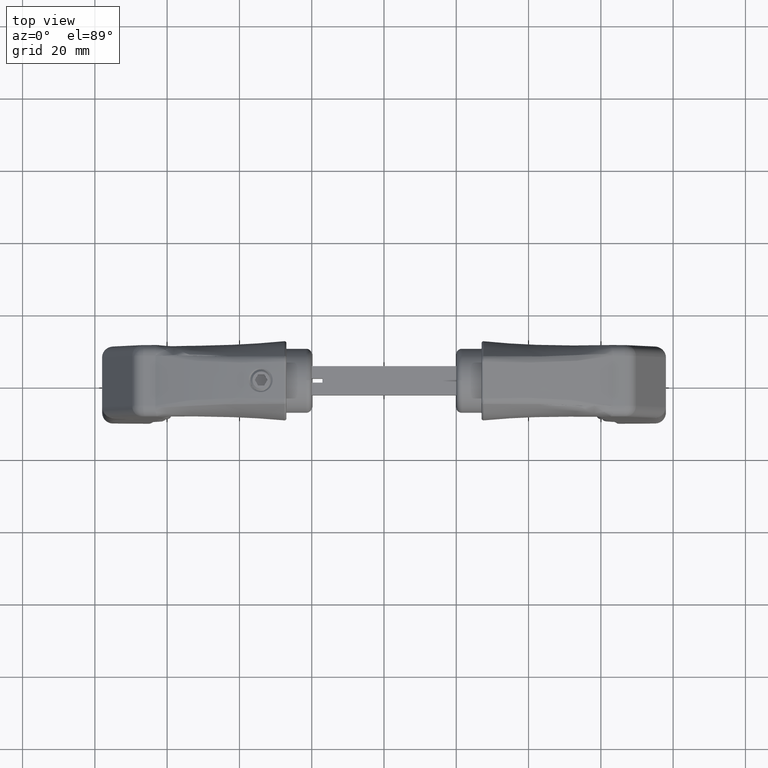
[diagram: clean part render]
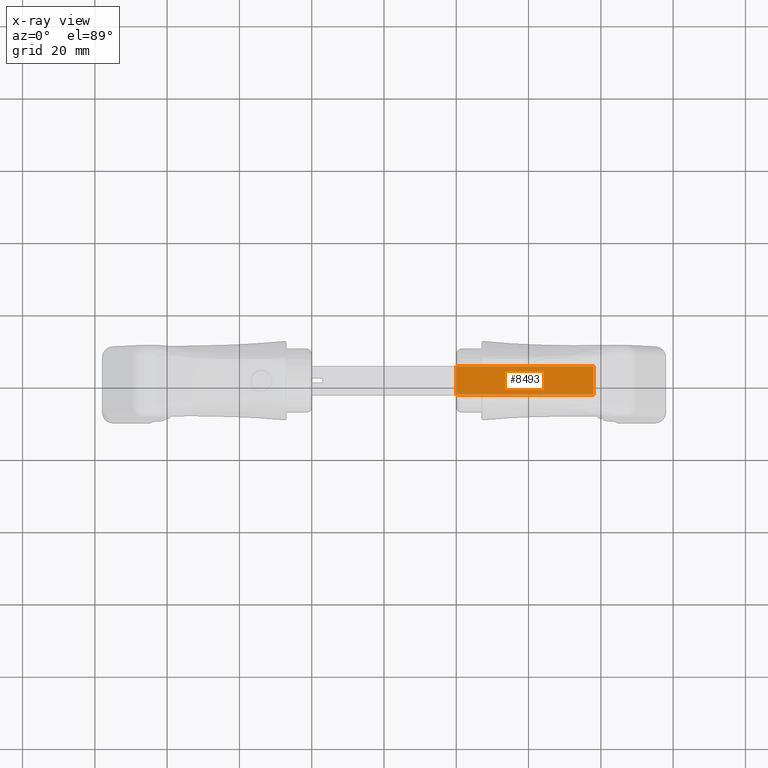
[diagram: x-ray — body ghosted, one internal face saturated and labeled with its STEP entity id]
A machine part, top view, then the same camera in x-ray: the body is ghosted and one INTERNAL B-rep face — a face not visible from any outside direction — is saturated and labeled: STEP entity #8493.
In plain terms, the highlighted planar face has unit normal (0, 0, 1).
Its self-contained STEP definition (entity closure, byte-faithful):
#740 = DIRECTION ( 'NONE',  ( -1.070816960479510747E-16, 1.000000000000000000, 0.000000000000000000 ) ) ;
#754 = VERTEX_POINT ( 'NONE', #9603 ) ;
#894 = ORIENTED_EDGE ( 'NONE', *, *, #6694, .T. ) ;
#1195 = EDGE_CURVE ( 'NONE', #2575, #13308, #12343, .T. ) ;
#1687 = ORIENTED_EDGE ( 'NONE', *, *, #1195, .F. ) ;
#2053 = CARTESIAN_POINT ( 'NONE',  ( 4.049999999999998934, 3.950000000000000178, -30.99999999999999645 ) ) ;
#2575 = VERTEX_POINT ( 'NONE', #3452 ) ;
#2898 = DIRECTION ( 'NONE',  ( 0.000000000000000000, 0.000000000000000000, 1.000000000000000000 ) ) ;
#3088 = CARTESIAN_POINT ( 'NONE',  ( 4.049999999999998934, 3.950000000000000178, 6.900000000000003020 ) ) ;
#3452 = CARTESIAN_POINT ( 'NONE',  ( 4.049999999999999822, -3.949999999999997957, -30.99999999999999645 ) ) ;
#3557 = CARTESIAN_POINT ( 'NONE',  ( 4.049999999999998934, 4.050000000000000711, -30.99999999999999645 ) ) ;
#4015 = LINE ( 'NONE', #13652, #15599 ) ;
#4268 = PLANE ( 'NONE',  #14463 ) ;
#4527 = VERTEX_POINT ( 'NONE', #3088 ) ;
#4537 = FACE_OUTER_BOUND ( 'NONE', #11292, .T. ) ;
#4589 = ORIENTED_EDGE ( 'NONE', *, *, #5589, .T. ) ;
#5589 = EDGE_CURVE ( 'NONE', #2575, #754, #4015, .T. ) ;
#6637 = EDGE_CURVE ( 'NONE', #754, #4527, #9682, .T. ) ;
#6694 = EDGE_CURVE ( 'NONE', #4527, #13308, #8765, .T. ) ;
#6823 = CARTESIAN_POINT ( 'NONE',  ( 4.049999999999998934, 4.050000000000000711, -30.99999999999999645 ) ) ;
#8193 = VECTOR ( 'NONE', #740, 1000.000000000000000 ) ;
#8493 = ADVANCED_FACE ( 'NONE', ( #4537 ), #4268, .F. ) ;
#8765 = LINE ( 'NONE', #2053, #13323 ) ;
#9068 = VECTOR ( 'NONE', #13454, 1000.000000000000000 ) ;
#9603 = CARTESIAN_POINT ( 'NONE',  ( 4.049999999999999822, -3.949999999999997957, 6.900000000000003020 ) ) ;
#9682 = LINE ( 'NONE', #15265, #8193 ) ;
#10532 = DIRECTION ( 'NONE',  ( -0.000000000000000000, -0.000000000000000000, -1.000000000000000000 ) ) ;
#11292 = EDGE_LOOP ( 'NONE', ( #4589, #13723, #894, #1687 ) ) ;
#12343 = LINE ( 'NONE', #3557, #9068 ) ;
#13308 = VERTEX_POINT ( 'NONE', #13587 ) ;
#13323 = VECTOR ( 'NONE', #10532, 1000.000000000000000 ) ;
#13454 = DIRECTION ( 'NONE',  ( -1.070816960479510624E-16, 1.000000000000000000, 0.000000000000000000 ) ) ;
#13587 = CARTESIAN_POINT ( 'NONE',  ( 4.049999999999998934, 3.950000000000000178, -30.99999999999999645 ) ) ;
#13652 = CARTESIAN_POINT ( 'NONE',  ( 4.049999999999999822, -3.949999999999997957, 6.999999999999999112 ) ) ;
#13723 = ORIENTED_EDGE ( 'NONE', *, *, #6637, .T. ) ;
#14161 = DIRECTION ( 'NONE',  ( 1.000000000000000000, 1.070816960479510747E-16, 0.000000000000000000 ) ) ;
#14463 = AXIS2_PLACEMENT_3D ( 'NONE', #6823, #14161, #15191 ) ;
#15191 = DIRECTION ( 'NONE',  ( -1.070816960479510747E-16, 1.000000000000000000, 0.000000000000000000 ) ) ;
#15265 = CARTESIAN_POINT ( 'NONE',  ( 4.049999999999998934, 3.950000000000000178, 6.900000000000003020 ) ) ;
#15599 = VECTOR ( 'NONE', #2898, 1000.000000000000000 ) ;